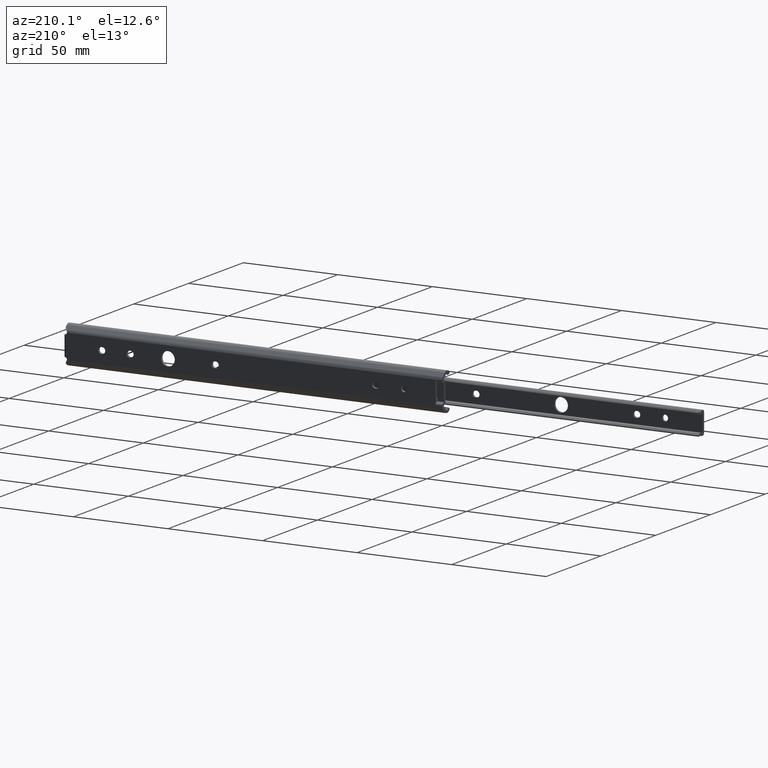
[diagram: clean part render]
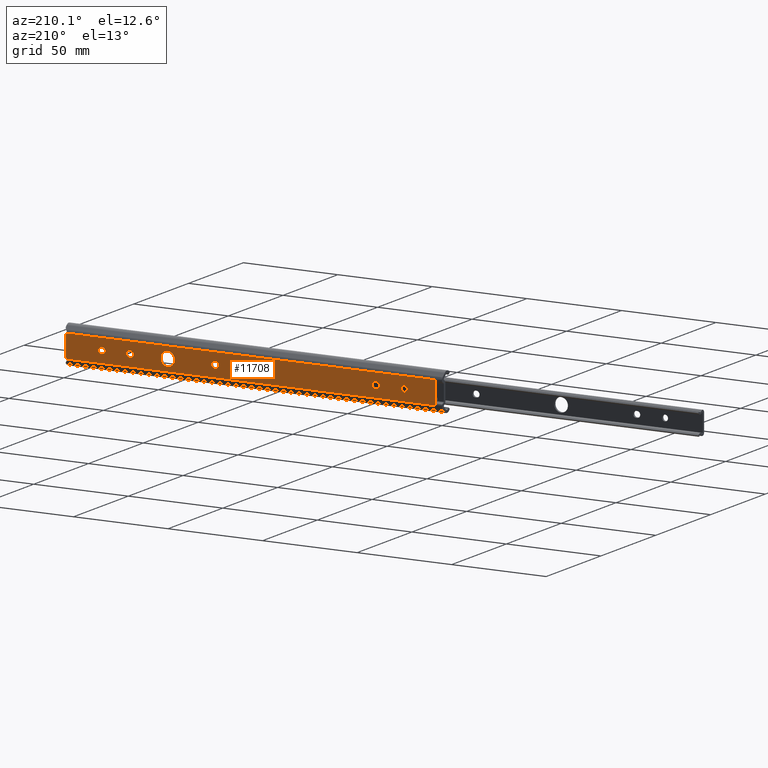
[diagram: same view with one face highlighted and labeled with its STEP entity id]
A machine part, auxiliary view. The second image highlights one B-rep face of the part: STEP entity #11708.
In plain terms, the highlighted face is a freeform B-spline surface patch.
Its self-contained STEP definition (entity closure, byte-faithful):
#8571=CARTESIAN_POINT('',(148.643192014112290,5.204170E-017,-0.222827171386621));
#8572=VERTEX_POINT('',#8571);
#8578=CARTESIAN_POINT('',(145.0,0.0,-3.650000000000000));
#8579=VERTEX_POINT('',#8578);
#8580=CARTESIAN_POINT('',(145.0,0.0,-3.650000000000000));
#8581=CARTESIAN_POINT('',(148.433577140269510,0.0,-3.650000000000000));
#8582=CARTESIAN_POINT('',(148.643192014112370,5.204170E-017,-0.222827171386621));
#8590=(BOUNDED_CURVE()B_SPLINE_CURVE(2,(#8580,#8581,#8582),.UNSPECIFIED.,.F.,.U.)B_SPLINE_CURVE_WITH_KNOTS((3,3),(0.500000000000000,0.739332962044529),.UNSPECIFIED.)CURVE()GEOMETRIC_REPRESENTATION_ITEM()RATIONAL_B_SPLINE_CURVE((1.0,0.719603993514480,0.976072041250053))REPRESENTATION_ITEM(''));
#8591=EDGE_CURVE('',#8579,#8572,#8590,.T.);
#8593=CARTESIAN_POINT('',(141.375515229066510,4.968999E-017,0.430824958969970));
#8594=VERTEX_POINT('',#8593);
#8595=CARTESIAN_POINT('',(141.375515229066510,4.968999E-017,0.430824958969970));
#8596=CARTESIAN_POINT('',(141.349999999999990,0.0,0.216168039228415));
#8597=CARTESIAN_POINT('',(141.349999999999990,0.0,0.0));
#8598=CARTESIAN_POINT('',(141.349999999999990,0.0,-3.650000000000000));
#8599=CARTESIAN_POINT('',(145.0,0.0,-3.650000000000000));
#8607=(BOUNDED_CURVE()B_SPLINE_CURVE(2,(#8595,#8596,#8597,#8598,#8599),.UNSPECIFIED.,.F.,.U.)B_SPLINE_CURVE_WITH_KNOTS((3,2,3),(0.229562473285040,0.250000000000000,0.500000000000000),.UNSPECIFIED.)CURVE()GEOMETRIC_REPRESENTATION_ITEM()RATIONAL_B_SPLINE_CURVE((0.956026753735891,0.976055948063477,1.0,0.707106781186547,1.0))REPRESENTATION_ITEM(''));
#8608=EDGE_CURVE('',#8594,#8579,#8607,.T.);
#8652=CARTESIAN_POINT('',(145.0,0.0,3.650000000000000));
#8653=VERTEX_POINT('',#8652);
#8654=CARTESIAN_POINT('',(145.0,0.0,3.650000000000000));
#8655=CARTESIAN_POINT('',(141.758162984732170,0.0,3.649999999999999));
#8656=CARTESIAN_POINT('',(141.375515229066560,4.968999E-017,0.430824958969970));
#8664=(BOUNDED_CURVE()B_SPLINE_CURVE(2,(#8654,#8655,#8656),.UNSPECIFIED.,.F.,.U.)B_SPLINE_CURVE_WITH_KNOTS((3,3),(0.0,0.229562473285040),.UNSPECIFIED.)CURVE()GEOMETRIC_REPRESENTATION_ITEM()RATIONAL_B_SPLINE_CURVE((1.0,0.731050833123070,0.956026753735892))REPRESENTATION_ITEM(''));
#8665=EDGE_CURVE('',#8653,#8594,#8664,.T.);
#8667=CARTESIAN_POINT('',(148.643192014112370,5.204170E-017,-0.222827171386621));
#8668=CARTESIAN_POINT('',(148.649999999999980,0.0,-0.111517588130087));
#8669=CARTESIAN_POINT('',(148.650000000000010,0.0,0.0));
#8670=CARTESIAN_POINT('',(148.650000000000030,0.0,3.650000000000000));
#8671=CARTESIAN_POINT('',(145.0,0.0,3.650000000000000));
#8679=(BOUNDED_CURVE()B_SPLINE_CURVE(2,(#8667,#8668,#8669,#8670,#8671),.UNSPECIFIED.,.F.,.U.)B_SPLINE_CURVE_WITH_KNOTS((3,2,3),(0.739332962044529,0.750000000000000,1.0),.UNSPECIFIED.)CURVE()GEOMETRIC_REPRESENTATION_ITEM()RATIONAL_B_SPLINE_CURVE((0.976072041250051,0.987502787672067,1.0,0.707106781186547,1.0))REPRESENTATION_ITEM(''));
#8680=EDGE_CURVE('',#8572,#8653,#8679,.T.);
#8757=CARTESIAN_POINT('',(21.597015677303609,4.857226E-017,-0.097677666057758));
#8758=VERTEX_POINT('',#8757);
#8764=CARTESIAN_POINT('',(20.0,0.0,-1.600000000000000));
#8765=VERTEX_POINT('',#8764);
#8766=CARTESIAN_POINT('',(20.0,0.0,-1.600000000000000));
#8767=CARTESIAN_POINT('',(21.505129701757689,0.0,-1.599999999999999));
#8768=CARTESIAN_POINT('',(21.597015677303609,4.857226E-017,-0.097677666057758));
#8776=(BOUNDED_CURVE()B_SPLINE_CURVE(2,(#8766,#8767,#8768),.UNSPECIFIED.,.F.,.U.)B_SPLINE_CURVE_WITH_KNOTS((3,3),(0.500000000000000,0.739332961636496),.UNSPECIFIED.)CURVE()GEOMETRIC_REPRESENTATION_ITEM()RATIONAL_B_SPLINE_CURVE((1.0,0.719603993992521,0.976072040375559))REPRESENTATION_ITEM(''));
#8777=EDGE_CURVE('',#8765,#8758,#8776,.T.);
#8779=CARTESIAN_POINT('',(18.411184758290592,4.614071E-017,0.188854779425491));
#8780=VERTEX_POINT('',#8779);
#8781=CARTESIAN_POINT('',(18.411184758290585,4.614071E-017,0.188854779425491));
#8782=CARTESIAN_POINT('',(18.399999999999995,0.0,0.094758595459753));
#8783=CARTESIAN_POINT('',(18.399999999999999,0.0,0.0));
#8784=CARTESIAN_POINT('',(18.399999999999991,0.0,-1.600000000000000));
#8785=CARTESIAN_POINT('',(20.0,0.0,-1.600000000000000));
#8793=(BOUNDED_CURVE()B_SPLINE_CURVE(2,(#8781,#8782,#8783,#8784,#8785),.UNSPECIFIED.,.F.,.U.)B_SPLINE_CURVE_WITH_KNOTS((3,2,3),(0.229562472670066,0.250000000000000,0.500000000000000),.UNSPECIFIED.)CURVE()GEOMETRIC_REPRESENTATION_ITEM()RATIONAL_B_SPLINE_CURVE((0.956026752530519,0.976055947342992,1.0,0.707106781186548,1.0))REPRESENTATION_ITEM(''));
#8794=EDGE_CURVE('',#8780,#8765,#8793,.T.);
#8838=CARTESIAN_POINT('',(20.0,0.0,1.600000000000000));
#8839=VERTEX_POINT('',#8838);
#8840=CARTESIAN_POINT('',(20.0,0.0,1.600000000000000));
#8841=CARTESIAN_POINT('',(18.578920765637985,0.0,1.600000000000000));
#8842=CARTESIAN_POINT('',(18.411184758290588,4.614071E-017,0.188854779425491));
#8850=(BOUNDED_CURVE()B_SPLINE_CURVE(2,(#8840,#8841,#8842),.UNSPECIFIED.,.F.,.U.)B_SPLINE_CURVE_WITH_KNOTS((3,3),(0.0,0.229562472670066),.UNSPECIFIED.)CURVE()GEOMETRIC_REPRESENTATION_ITEM()RATIONAL_B_SPLINE_CURVE((1.0,0.731050833843556,0.956026752530519))REPRESENTATION_ITEM(''));
#8851=EDGE_CURVE('',#8839,#8780,#8850,.T.);
#8853=CARTESIAN_POINT('',(21.597015677303606,4.857226E-017,-0.097677666057758));
#8854=CARTESIAN_POINT('',(21.599999999999998,0.0,-0.048884424087585));
#8855=CARTESIAN_POINT('',(21.600000000000001,0.0,0.0));
#8856=CARTESIAN_POINT('',(21.600000000000005,0.0,1.600000000000000));
#8857=CARTESIAN_POINT('',(20.0,0.0,1.600000000000000));
#8865=(BOUNDED_CURVE()B_SPLINE_CURVE(2,(#8853,#8854,#8855,#8856,#8857),.UNSPECIFIED.,.F.,.U.)B_SPLINE_CURVE_WITH_KNOTS((3,2,3),(0.739332961636497,0.750000000000000,1.0),.UNSPECIFIED.)CURVE()GEOMETRIC_REPRESENTATION_ITEM()RATIONAL_B_SPLINE_CURVE((0.976072040375561,0.987502787194028,1.0,0.707106781186548,1.0))REPRESENTATION_ITEM(''));
#8866=EDGE_CURVE('',#8758,#8839,#8865,.T.);
#8901=CARTESIAN_POINT('',(180.300000000000010,8.526513E-014,-1.600000000000000));
#8902=VERTEX_POINT('',#8901);
#8908=CARTESIAN_POINT('',(179.699999999999990,0.0,-1.600000000000000));
#8909=VERTEX_POINT('',#8908);
#8910=CARTESIAN_POINT('',(179.699999999999990,0.0,-1.600000000000000));
#8911=CARTESIAN_POINT('',(180.300000000000010,8.526513E-014,-1.600000000000000));
#8912=QUASI_UNIFORM_CURVE('',1,(#8910,#8911),.UNSPECIFIED.,.F.,.U.);
#8913=EDGE_CURVE('',#8909,#8902,#8912,.T.);
#8959=CARTESIAN_POINT('',(179.699999999999990,0.0,1.599999999999910));
#8960=VERTEX_POINT('',#8959);
#8961=CARTESIAN_POINT('',(179.699999999999990,0.0,1.600000000000000));
#8962=CARTESIAN_POINT('',(178.099999999999970,0.0,1.600000000000000));
#8963=CARTESIAN_POINT('',(178.099999999999990,0.0,0.0));
#8964=CARTESIAN_POINT('',(178.099999999999970,0.0,-1.600000000000000));
#8965=CARTESIAN_POINT('',(179.699999999999990,0.0,-1.600000000000000));
#8973=(BOUNDED_CURVE()B_SPLINE_CURVE(2,(#8961,#8962,#8963,#8964,#8965),.UNSPECIFIED.,.F.,.U.)B_SPLINE_CURVE_WITH_KNOTS((3,2,3),(0.0,0.500000000000000,1.0),.UNSPECIFIED.)CURVE()GEOMETRIC_REPRESENTATION_ITEM()RATIONAL_B_SPLINE_CURVE((1.0,0.707106781186548,1.0,0.707106781186548,1.0))REPRESENTATION_ITEM(''));
#8974=EDGE_CURVE('',#8960,#8909,#8973,.T.);
#8997=CARTESIAN_POINT('',(180.300000000000010,0.0,1.599999999999910));
#8998=VERTEX_POINT('',#8997);
#8999=CARTESIAN_POINT('',(180.300000000000010,0.0,1.599999999999910));
#9000=CARTESIAN_POINT('',(179.699999999999990,0.0,1.599999999999910));
#9001=QUASI_UNIFORM_CURVE('',1,(#8999,#9000),.UNSPECIFIED.,.F.,.U.);
#9002=EDGE_CURVE('',#8998,#8960,#9001,.T.);
#9046=CARTESIAN_POINT('',(180.300000000000010,0.0,-1.600000000000000));
#9047=CARTESIAN_POINT('',(181.899999999999980,0.0,-1.600000000000000));
#9048=CARTESIAN_POINT('',(181.900000000000010,0.0,0.0));
#9049=CARTESIAN_POINT('',(181.899999999999980,0.0,1.600000000000000));
#9050=CARTESIAN_POINT('',(180.300000000000010,0.0,1.600000000000000));
#9058=(BOUNDED_CURVE()B_SPLINE_CURVE(2,(#9046,#9047,#9048,#9049,#9050),.UNSPECIFIED.,.F.,.U.)B_SPLINE_CURVE_WITH_KNOTS((3,2,3),(0.0,0.500000000000000,1.0),.UNSPECIFIED.)CURVE()GEOMETRIC_REPRESENTATION_ITEM()RATIONAL_B_SPLINE_CURVE((1.0,0.707106781186548,1.0,0.707106781186548,1.0))REPRESENTATION_ITEM(''));
#9059=EDGE_CURVE('',#8902,#8998,#9058,.T.);
#9079=CARTESIAN_POINT('',(165.300000000000010,8.526513E-014,-1.600000000000000));
#9080=VERTEX_POINT('',#9079);
#9086=CARTESIAN_POINT('',(164.699999999999990,0.0,-1.600000000000000));
#9087=VERTEX_POINT('',#9086);
#9088=CARTESIAN_POINT('',(164.699999999999990,0.0,-1.600000000000000));
#9089=CARTESIAN_POINT('',(165.300000000000010,8.526513E-014,-1.600000000000000));
#9090=QUASI_UNIFORM_CURVE('',1,(#9088,#9089),.UNSPECIFIED.,.F.,.U.);
#9091=EDGE_CURVE('',#9087,#9080,#9090,.T.);
#9137=CARTESIAN_POINT('',(164.699999999999990,0.0,1.599999999999910));
#9138=VERTEX_POINT('',#9137);
#9139=CARTESIAN_POINT('',(164.699999999999990,0.0,1.600000000000000));
#9140=CARTESIAN_POINT('',(163.099999999999990,0.0,1.600000000000000));
#9141=CARTESIAN_POINT('',(163.099999999999990,0.0,0.0));
#9142=CARTESIAN_POINT('',(163.099999999999990,0.0,-1.600000000000000));
#9143=CARTESIAN_POINT('',(164.699999999999990,0.0,-1.600000000000000));
#9151=(BOUNDED_CURVE()B_SPLINE_CURVE(2,(#9139,#9140,#9141,#9142,#9143),.UNSPECIFIED.,.F.,.U.)B_SPLINE_CURVE_WITH_KNOTS((3,2,3),(0.0,0.500000000000000,1.0),.UNSPECIFIED.)CURVE()GEOMETRIC_REPRESENTATION_ITEM()RATIONAL_B_SPLINE_CURVE((1.0,0.707106781186548,1.0,0.707106781186548,1.0))REPRESENTATION_ITEM(''));
#9152=EDGE_CURVE('',#9138,#9087,#9151,.T.);
#9175=CARTESIAN_POINT('',(165.300000000000010,0.0,1.599999999999910));
#9176=VERTEX_POINT('',#9175);
#9177=CARTESIAN_POINT('',(165.300000000000010,0.0,1.599999999999910));
#9178=CARTESIAN_POINT('',(164.699999999999990,0.0,1.599999999999910));
#9179=QUASI_UNIFORM_CURVE('',1,(#9177,#9178),.UNSPECIFIED.,.F.,.U.);
#9180=EDGE_CURVE('',#9176,#9138,#9179,.T.);
#9224=CARTESIAN_POINT('',(165.300000000000010,0.0,-1.600000000000000));
#9225=CARTESIAN_POINT('',(166.900000000000010,0.0,-1.600000000000000));
#9226=CARTESIAN_POINT('',(166.900000000000010,0.0,0.0));
#9227=CARTESIAN_POINT('',(166.900000000000010,0.0,1.600000000000000));
#9228=CARTESIAN_POINT('',(165.300000000000010,0.0,1.600000000000000));
#9236=(BOUNDED_CURVE()B_SPLINE_CURVE(2,(#9224,#9225,#9226,#9227,#9228),.UNSPECIFIED.,.F.,.U.)B_SPLINE_CURVE_WITH_KNOTS((3,2,3),(0.0,0.500000000000000,1.0),.UNSPECIFIED.)CURVE()GEOMETRIC_REPRESENTATION_ITEM()RATIONAL_B_SPLINE_CURVE((1.0,0.707106781186548,1.0,0.707106781186548,1.0))REPRESENTATION_ITEM(''));
#9237=EDGE_CURVE('',#9080,#9176,#9236,.T.);
#9257=CARTESIAN_POINT('',(120.300000000000000,8.526513E-014,-1.600000000000000));
#9258=VERTEX_POINT('',#9257);
#9264=CARTESIAN_POINT('',(119.700000000000000,0.0,-1.600000000000000));
#9265=VERTEX_POINT('',#9264);
#9266=CARTESIAN_POINT('',(119.700000000000000,0.0,-1.600000000000000));
#9267=CARTESIAN_POINT('',(120.300000000000000,8.526513E-014,-1.600000000000000));
#9268=QUASI_UNIFORM_CURVE('',1,(#9266,#9267),.UNSPECIFIED.,.F.,.U.);
#9269=EDGE_CURVE('',#9265,#9258,#9268,.T.);
#9315=CARTESIAN_POINT('',(119.700000000000000,0.0,1.599999999999910));
#9316=VERTEX_POINT('',#9315);
#9317=CARTESIAN_POINT('',(119.700000000000000,0.0,1.600000000000000));
#9318=CARTESIAN_POINT('',(118.099999999999980,0.0,1.600000000000000));
#9319=CARTESIAN_POINT('',(118.099999999999990,0.0,0.0));
#9320=CARTESIAN_POINT('',(118.099999999999980,0.0,-1.600000000000000));
#9321=CARTESIAN_POINT('',(119.700000000000000,0.0,-1.600000000000000));
#9329=(BOUNDED_CURVE()B_SPLINE_CURVE(2,(#9317,#9318,#9319,#9320,#9321),.UNSPECIFIED.,.F.,.U.)B_SPLINE_CURVE_WITH_KNOTS((3,2,3),(0.0,0.500000000000000,1.0),.UNSPECIFIED.)CURVE()GEOMETRIC_REPRESENTATION_ITEM()RATIONAL_B_SPLINE_CURVE((1.0,0.707106781186548,1.0,0.707106781186548,1.0))REPRESENTATION_ITEM(''));
#9330=EDGE_CURVE('',#9316,#9265,#9329,.T.);
#9353=CARTESIAN_POINT('',(120.300000000000000,0.0,1.599999999999910));
#9354=VERTEX_POINT('',#9353);
#9355=CARTESIAN_POINT('',(120.300000000000000,0.0,1.599999999999910));
#9356=CARTESIAN_POINT('',(119.700000000000000,0.0,1.599999999999910));
#9357=QUASI_UNIFORM_CURVE('',1,(#9355,#9356),.UNSPECIFIED.,.F.,.U.);
#9358=EDGE_CURVE('',#9354,#9316,#9357,.T.);
#9402=CARTESIAN_POINT('',(120.300000000000000,0.0,-1.600000000000000));
#9403=CARTESIAN_POINT('',(121.900000000000010,0.0,-1.600000000000000));
#9404=CARTESIAN_POINT('',(121.900000000000010,0.0,0.0));
#9405=CARTESIAN_POINT('',(121.900000000000010,0.0,1.600000000000000));
#9406=CARTESIAN_POINT('',(120.300000000000000,0.0,1.600000000000000));
#9414=(BOUNDED_CURVE()B_SPLINE_CURVE(2,(#9402,#9403,#9404,#9405,#9406),.UNSPECIFIED.,.F.,.U.)B_SPLINE_CURVE_WITH_KNOTS((3,2,3),(0.0,0.500000000000000,1.0),.UNSPECIFIED.)CURVE()GEOMETRIC_REPRESENTATION_ITEM()RATIONAL_B_SPLINE_CURVE((1.0,0.707106781186548,1.0,0.707106781186548,1.0))REPRESENTATION_ITEM(''));
#9415=EDGE_CURVE('',#9258,#9354,#9414,.T.);
#9435=CARTESIAN_POINT('',(35.299999999999997,8.526513E-014,-1.600000000000080));
#9436=VERTEX_POINT('',#9435);
#9442=CARTESIAN_POINT('',(34.700000000000003,0.0,-1.600000000000000));
#9443=VERTEX_POINT('',#9442);
#9444=CARTESIAN_POINT('',(34.700000000000003,0.0,-1.600000000000000));
#9445=CARTESIAN_POINT('',(35.299999999999997,8.526513E-014,-1.600000000000080));
#9446=QUASI_UNIFORM_CURVE('',1,(#9444,#9445),.UNSPECIFIED.,.F.,.U.);
#9447=EDGE_CURVE('',#9443,#9436,#9446,.T.);
#9493=CARTESIAN_POINT('',(34.700000000000003,0.0,1.600000000000025));
#9494=VERTEX_POINT('',#9493);
#9495=CARTESIAN_POINT('',(34.700000000000003,0.0,1.600000000000000));
#9496=CARTESIAN_POINT('',(33.100000000000009,0.0,1.600000000000000));
#9497=CARTESIAN_POINT('',(33.100000000000001,0.0,0.0));
#9498=CARTESIAN_POINT('',(33.100000000000009,0.0,-1.600000000000000));
#9499=CARTESIAN_POINT('',(34.700000000000003,0.0,-1.600000000000000));
#9507=(BOUNDED_CURVE()B_SPLINE_CURVE(2,(#9495,#9496,#9497,#9498,#9499),.UNSPECIFIED.,.F.,.U.)B_SPLINE_CURVE_WITH_KNOTS((3,2,3),(0.0,0.500000000000000,1.0),.UNSPECIFIED.)CURVE()GEOMETRIC_REPRESENTATION_ITEM()RATIONAL_B_SPLINE_CURVE((1.0,0.707106781186548,1.0,0.707106781186548,1.0))REPRESENTATION_ITEM(''));
#9508=EDGE_CURVE('',#9494,#9443,#9507,.T.);
#9531=CARTESIAN_POINT('',(35.299999999999997,0.0,1.600000000000025));
#9532=VERTEX_POINT('',#9531);
#9533=CARTESIAN_POINT('',(35.299999999999997,0.0,1.600000000000025));
#9534=CARTESIAN_POINT('',(34.700000000000003,0.0,1.600000000000025));
#9535=QUASI_UNIFORM_CURVE('',1,(#9533,#9534),.UNSPECIFIED.,.F.,.U.);
#9536=EDGE_CURVE('',#9532,#9494,#9535,.T.);
#9580=CARTESIAN_POINT('',(35.299999999999997,8.526513E-014,-1.600000000000080));
#9581=CARTESIAN_POINT('',(36.900000000000006,0.0,-1.600000000000000));
#9582=CARTESIAN_POINT('',(36.899999999999999,0.0,0.0));
#9583=CARTESIAN_POINT('',(36.900000000000006,0.0,1.600000000000000));
#9584=CARTESIAN_POINT('',(35.299999999999997,0.0,1.600000000000000));
#9592=(BOUNDED_CURVE()B_SPLINE_CURVE(2,(#9580,#9581,#9582,#9583,#9584),.UNSPECIFIED.,.F.,.U.)B_SPLINE_CURVE_WITH_KNOTS((3,2,3),(0.0,0.500000000000000,1.0),.UNSPECIFIED.)CURVE()GEOMETRIC_REPRESENTATION_ITEM()RATIONAL_B_SPLINE_CURVE((1.0,0.707106781186548,1.0,0.707106781186548,1.0))REPRESENTATION_ITEM(''));
#9593=EDGE_CURVE('',#9436,#9532,#9592,.T.);
#9652=CARTESIAN_POINT('',(199.0,0.0,-5.383484861008840));
#9653=VERTEX_POINT('',#9652);
#9665=CARTESIAN_POINT('',(199.0,0.0,5.383484861008751));
#9666=VERTEX_POINT('',#9665);
#9667=CARTESIAN_POINT('',(199.0,0.0,5.383484861008751));
#9668=CARTESIAN_POINT('',(199.0,0.0,-5.383484861008840));
#9669=QUASI_UNIFORM_CURVE('',1,(#9667,#9668),.UNSPECIFIED.,.F.,.U.);
#9670=EDGE_CURVE('',#9666,#9653,#9669,.T.);
#10076=CARTESIAN_POINT('',(198.424053688014000,0.0,6.081989000000000));
#10077=VERTEX_POINT('',#10076);
#10078=CARTESIAN_POINT('',(198.424053688014000,0.0,6.081989000000002));
#10079=CARTESIAN_POINT('',(198.534727763389700,0.0,5.586546312725764));
#10080=CARTESIAN_POINT('',(199.0,0.0,5.383484861008813));
#10088=(BOUNDED_CURVE()B_SPLINE_CURVE(2,(#10078,#10079,#10080),.UNSPECIFIED.,.F.,.U.)CURVE()GEOMETRIC_REPRESENTATION_ITEM()QUASI_UNIFORM_CURVE()RATIONAL_B_SPLINE_CURVE((1.0,0.891680690258836,1.0))REPRESENTATION_ITEM(''));
#10089=EDGE_CURVE('',#10077,#9666,#10088,.T.);
#10290=CARTESIAN_POINT('',(198.424053688014000,0.0,-6.081989000000000));
#10291=VERTEX_POINT('',#10290);
#10292=CARTESIAN_POINT('',(199.0,0.0,-5.383484861008911));
#10293=CARTESIAN_POINT('',(198.534727763389780,0.0,-5.586546312725836));
#10294=CARTESIAN_POINT('',(198.424053688014110,0.0,-6.081989000000006));
#10302=(BOUNDED_CURVE()B_SPLINE_CURVE(2,(#10292,#10293,#10294),.UNSPECIFIED.,.F.,.U.)CURVE()GEOMETRIC_REPRESENTATION_ITEM()QUASI_UNIFORM_CURVE()RATIONAL_B_SPLINE_CURVE((1.0,0.891680690258857,1.0))REPRESENTATION_ITEM(''));
#10303=EDGE_CURVE('',#9653,#10291,#10302,.T.);
#11621=CARTESIAN_POINT('',(3.499999999999950,7.958044E-014,-6.081989000000000));
#11622=VERTEX_POINT('',#11621);
#11623=CARTESIAN_POINT('',(198.424053688014000,0.0,-6.081989000000000));
#11624=CARTESIAN_POINT('',(3.499999999999950,7.958044E-014,-6.081989000000000));
#11625=QUASI_UNIFORM_CURVE('',1,(#11623,#11624),.UNSPECIFIED.,.F.,.U.);
#11626=EDGE_CURVE('',#10291,#11622,#11625,.T.);
#11649=CARTESIAN_POINT('',(-6.265224621083107,8.526513E-014,-6.689579519878855));
#11650=CARTESIAN_POINT('',(-6.265224621083107,8.526513E-014,6.689579084861101));
#11651=CARTESIAN_POINT('',(208.765229864801710,8.526513E-014,-6.689579519878854));
#11652=CARTESIAN_POINT('',(208.765229864801710,8.526513E-014,6.689579084861101));
#11653=B_SPLINE_SURFACE_WITH_KNOTS('',1,1,((#11649,#11651),(#11650,#11652)),.UNSPECIFIED.,.F.,.F.,.U.,(2,2),(2,2),(0.0,13.379158604739960),(0.0,215.030454485884800),.UNSPECIFIED.);
#11654=ORIENTED_EDGE('',*,*,#10089,.T.);
#11655=ORIENTED_EDGE('',*,*,#9670,.T.);
#11656=ORIENTED_EDGE('',*,*,#10303,.T.);
#11657=ORIENTED_EDGE('',*,*,#11626,.T.);
#11658=CARTESIAN_POINT('',(3.499999999999950,-9.085614E-014,6.081989000000000));
#11659=VERTEX_POINT('',#11658);
#11660=CARTESIAN_POINT('',(3.499999999999950,7.958044E-014,-6.081989000000000));
#11661=CARTESIAN_POINT('',(3.499999999999950,-9.085614E-014,6.081989000000000));
#11662=QUASI_UNIFORM_CURVE('',1,(#11660,#11661),.UNSPECIFIED.,.F.,.U.);
#11663=EDGE_CURVE('',#11622,#11659,#11662,.T.);
#11664=ORIENTED_EDGE('',*,*,#11663,.T.);
#11665=CARTESIAN_POINT('',(198.424053688014000,0.0,6.081989000000000));
#11666=CARTESIAN_POINT('',(3.499999999999950,-9.085614E-014,6.081989000000000));
#11667=QUASI_UNIFORM_CURVE('',1,(#11665,#11666),.UNSPECIFIED.,.F.,.U.);
#11668=EDGE_CURVE('',#10077,#11659,#11667,.T.);
#11669=ORIENTED_EDGE('',*,*,#11668,.F.);
#11670=EDGE_LOOP('',(#11654,#11655,#11656,#11657,#11664,#11669));
#11671=FACE_OUTER_BOUND('',#11670,.T.);
#11672=ORIENTED_EDGE('',*,*,#9237,.T.);
#11673=ORIENTED_EDGE('',*,*,#9180,.T.);
#11674=ORIENTED_EDGE('',*,*,#9152,.T.);
#11675=ORIENTED_EDGE('',*,*,#9091,.T.);
#11676=EDGE_LOOP('',(#11672,#11673,#11674,#11675));
#11677=FACE_BOUND('',#11676,.T.);
#11678=ORIENTED_EDGE('',*,*,#9415,.T.);
#11679=ORIENTED_EDGE('',*,*,#9358,.T.);
#11680=ORIENTED_EDGE('',*,*,#9330,.T.);
#11681=ORIENTED_EDGE('',*,*,#9269,.T.);
#11682=EDGE_LOOP('',(#11678,#11679,#11680,#11681));
#11683=FACE_BOUND('',#11682,.T.);
#11684=ORIENTED_EDGE('',*,*,#9593,.T.);
#11685=ORIENTED_EDGE('',*,*,#9536,.T.);
#11686=ORIENTED_EDGE('',*,*,#9508,.T.);
#11687=ORIENTED_EDGE('',*,*,#9447,.T.);
#11688=EDGE_LOOP('',(#11684,#11685,#11686,#11687));
#11689=FACE_BOUND('',#11688,.T.);
#11690=ORIENTED_EDGE('',*,*,#9059,.T.);
#11691=ORIENTED_EDGE('',*,*,#9002,.T.);
#11692=ORIENTED_EDGE('',*,*,#8974,.T.);
#11693=ORIENTED_EDGE('',*,*,#8913,.T.);
#11694=EDGE_LOOP('',(#11690,#11691,#11692,#11693));
#11695=FACE_BOUND('',#11694,.T.);
#11696=ORIENTED_EDGE('',*,*,#8777,.T.);
#11697=ORIENTED_EDGE('',*,*,#8866,.T.);
#11698=ORIENTED_EDGE('',*,*,#8851,.T.);
#11699=ORIENTED_EDGE('',*,*,#8794,.T.);
#11700=EDGE_LOOP('',(#11696,#11697,#11698,#11699));
#11701=FACE_BOUND('',#11700,.T.);
#11702=ORIENTED_EDGE('',*,*,#8591,.T.);
#11703=ORIENTED_EDGE('',*,*,#8680,.T.);
#11704=ORIENTED_EDGE('',*,*,#8665,.T.);
#11705=ORIENTED_EDGE('',*,*,#8608,.T.);
#11706=EDGE_LOOP('',(#11702,#11703,#11704,#11705));
#11707=FACE_BOUND('',#11706,.T.);
#11708=ADVANCED_FACE('',(#11671,#11677,#11683,#11689,#11695,#11701,#11707),#11653,.T.);